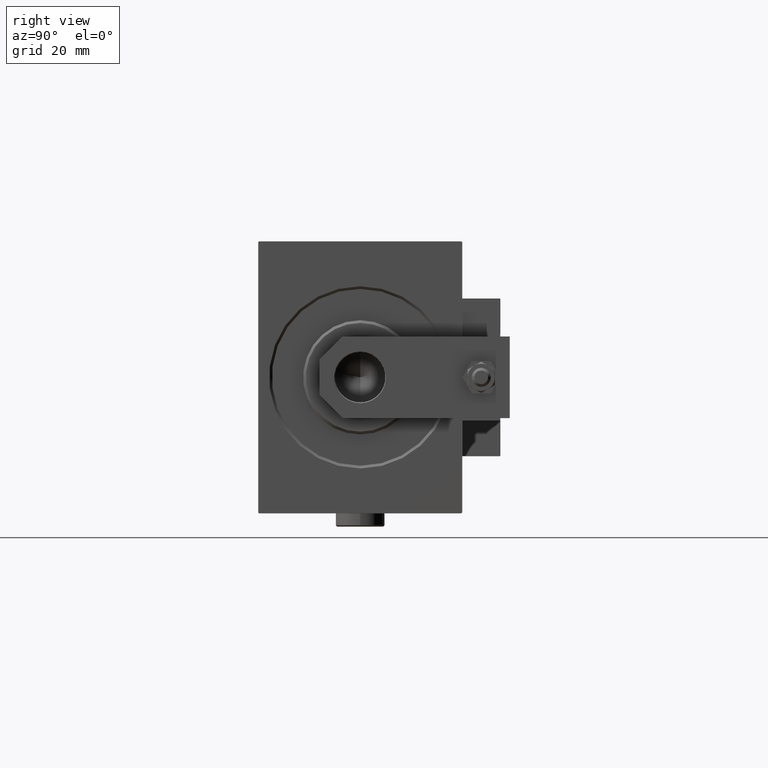
[diagram: clean part render]
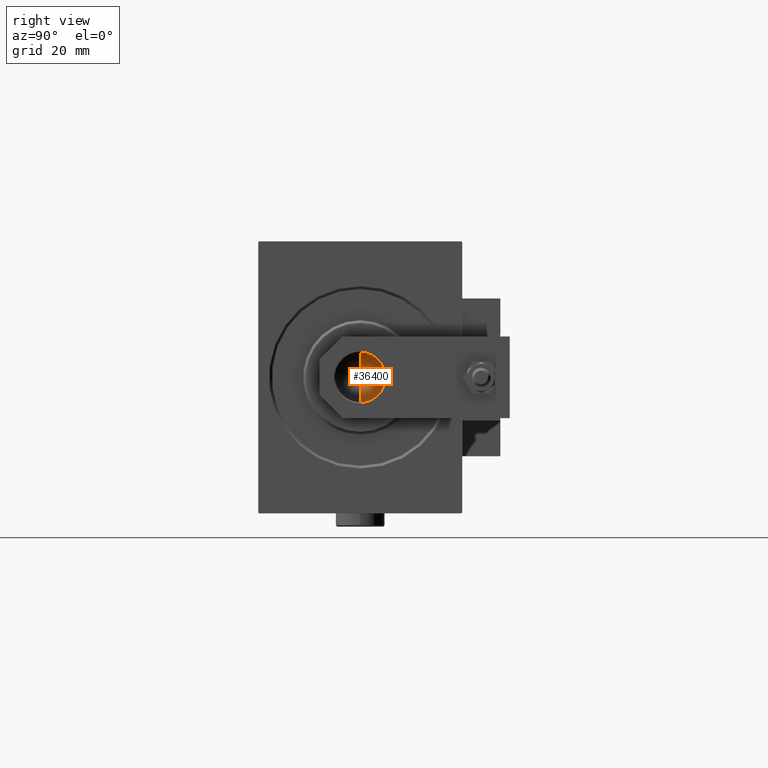
[diagram: same view with one face highlighted and labeled with its STEP entity id]
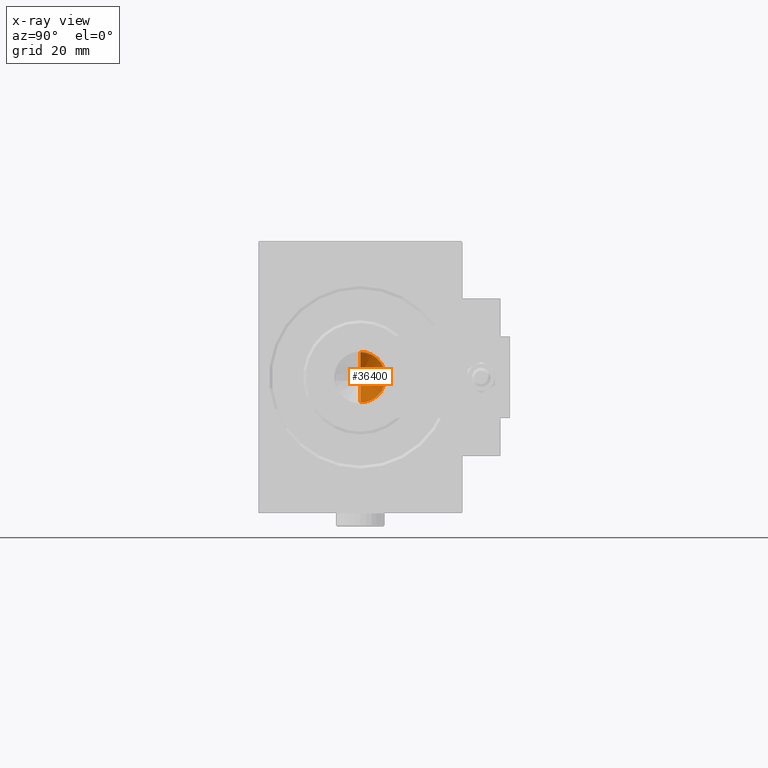
[diagram: x-ray of the same camera — body ghosted, the highlighted face saturated]
A machine part, right view. The second image highlights one B-rep face of the part: STEP entity #36400.
The next image is the same camera in x-ray: the body ghosted, the highlighted face saturated — about 0% of this face is hidden behind the body in this view.
In plain terms, the highlighted conical surface has half-angle 59 deg.
Its self-contained STEP definition (entity closure, byte-faithful):
#4504 = EDGE_LOOP ( 'NONE', ( #6372, #40207, #26171 ) ) ;
#4801 = AXIS2_PLACEMENT_3D ( 'NONE', #41386, #49446, #30429 ) ;
#6103 = EDGE_CURVE ( 'NONE', #43735, #38718, #45406, .T. ) ;
#6372 = ORIENTED_EDGE ( 'NONE', *, *, #37158, .F. ) ;
#8581 = LINE ( 'NONE', #16621, #36525 ) ;
#12723 = DIRECTION ( 'NONE',  ( 0.8571673007021113344, 0.000000000000000000, 0.5150380749100558209 ) ) ;
#13199 = EDGE_CURVE ( 'NONE', #22740, #43735, #8581, .T. ) ;
#16621 = CARTESIAN_POINT ( 'NONE',  ( 9.249999999999994671, 0.000000000000000000, 126.0000000000000284 ) ) ;
#17665 = CARTESIAN_POINT ( 'NONE',  ( -6.793016015247754405E-15, 0.000000000000000000, 120.4420392739950785 ) ) ;
#18716 = DIRECTION ( 'NONE',  ( -0.000000000000000000, -0.000000000000000000, 1.000000000000000000 ) ) ;
#18857 = VECTOR ( 'NONE', #46316, 1000.000000000000000 ) ;
#21345 = CONICAL_SURFACE ( 'NONE', #4801, 9.249999999999994671, 1.029744258676652535 ) ;
#22740 = VERTEX_POINT ( 'NONE', #17665 ) ;
#24685 = AXIS2_PLACEMENT_3D ( 'NONE', #49909, #18716, #27001 ) ;
#26171 = ORIENTED_EDGE ( 'NONE', *, *, #6103, .T. ) ;
#26538 = FACE_OUTER_BOUND ( 'NONE', #4504, .T. ) ;
#26943 = CARTESIAN_POINT ( 'NONE',  ( -9.249999999999994671, 1.132798289211300909E-15, 126.0000000000000284 ) ) ;
#27001 = DIRECTION ( 'NONE',  ( 1.000000000000000000, 0.000000000000000000, 0.000000000000000000 ) ) ;
#30429 = DIRECTION ( 'NONE',  ( 1.000000000000000000, 0.000000000000000000, 0.000000000000000000 ) ) ;
#35213 = CARTESIAN_POINT ( 'NONE',  ( 9.249999999999994671, 0.000000000000000000, 126.0000000000000284 ) ) ;
#36400 = ADVANCED_FACE ( 'NONE', ( #26538 ), #21345, .F. ) ;
#36525 = VECTOR ( 'NONE', #12723, 1000.000000000000000 ) ;
#37158 = EDGE_CURVE ( 'NONE', #22740, #38718, #38013, .T. ) ;
#38013 = LINE ( 'NONE', #50465, #18857 ) ;
#38718 = VERTEX_POINT ( 'NONE', #26943 ) ;
#40207 = ORIENTED_EDGE ( 'NONE', *, *, #13199, .T. ) ;
#41386 = CARTESIAN_POINT ( 'NONE',  ( 0.000000000000000000, 0.000000000000000000, 126.0000000000000284 ) ) ;
#43735 = VERTEX_POINT ( 'NONE', #35213 ) ;
#45406 = CIRCLE ( 'NONE', #24685, 9.249999999999994671 ) ;
#46316 = DIRECTION ( 'NONE',  ( -0.8571673007021113344, 1.049727191138617463E-16, 0.5150380749100558209 ) ) ;
#49446 = DIRECTION ( 'NONE',  ( -0.000000000000000000, -0.000000000000000000, 1.000000000000000000 ) ) ;
#49909 = CARTESIAN_POINT ( 'NONE',  ( 0.000000000000000000, 0.000000000000000000, 126.0000000000000284 ) ) ;
#50465 = CARTESIAN_POINT ( 'NONE',  ( -9.249999999999994671, 1.132798289211300909E-15, 126.0000000000000284 ) ) ;